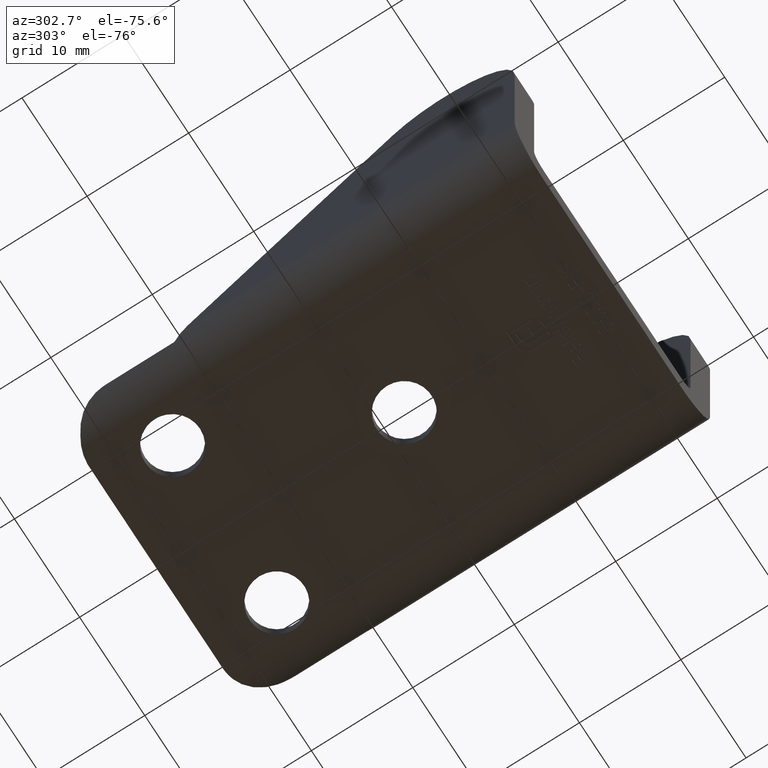
[diagram: clean part render]
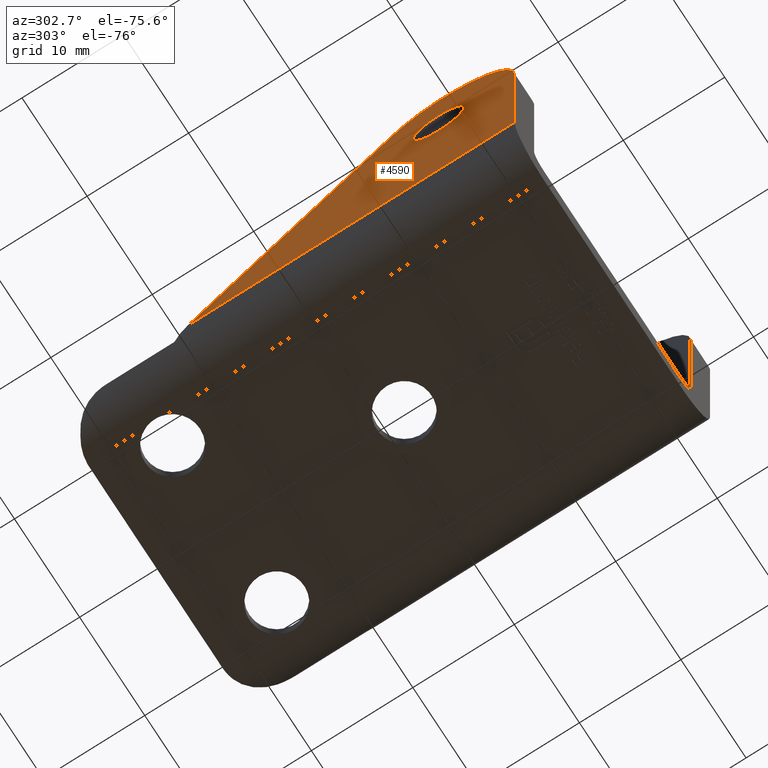
[diagram: same view with one face highlighted and labeled with its STEP entity id]
A machine part, auxiliary view. The second image highlights one B-rep face of the part: STEP entity #4590.
In plain terms, the highlighted planar face has unit normal (-1, -0, 0).
Its self-contained STEP definition (entity closure, byte-faithful):
#334 = LINE ( 'NONE', #12122, #9869 ) ;
#618 = EDGE_LOOP ( 'NONE', ( #6508, #2097, #7301, #5691 ) ) ;
#851 = DIRECTION ( 'NONE',  ( 1.000000000000000000, 0.000000000000000000, -0.000000000000000000 ) ) ;
#1213 = ORIENTED_EDGE ( 'NONE', *, *, #4534, .F. ) ;
#1675 = AXIS2_PLACEMENT_3D ( 'NONE', #10776, #2448, #3564 ) ;
#2097 = ORIENTED_EDGE ( 'NONE', *, *, #13474, .T. ) ;
#2448 = DIRECTION ( 'NONE',  ( -1.000000000000000000, 0.000000000000000000, 0.000000000000000000 ) ) ;
#2540 = CARTESIAN_POINT ( 'NONE',  ( -15.00000000000000000, 11.19999999999999751, -10.75000000000000533 ) ) ;
#2648 = DIRECTION ( 'NONE',  ( -0.000000000000000000, -1.000000000000000000, -0.000000000000000000 ) ) ;
#3564 = DIRECTION ( 'NONE',  ( 0.000000000000000000, 0.000000000000000000, 1.000000000000000000 ) ) ;
#4534 = EDGE_CURVE ( 'NONE', #10197, #10197, #9033, .T. ) ;
#4590 = ADVANCED_FACE ( 'NONE', ( #5422, #11862 ), #7168, .T. ) ;
#4830 = EDGE_CURVE ( 'NONE', #9039, #5916, #7693, .T. ) ;
#5101 = CARTESIAN_POINT ( 'NONE',  ( -15.00000000000000000, 9.746819203602028026, -9.250000000000003553 ) ) ;
#5128 = CARTESIAN_POINT ( 'NONE',  ( -15.00000000000000000, -15.00000000000000711, 8.749999999999998224 ) ) ;
#5422 = FACE_BOUND ( 'NONE', #11494, .T. ) ;
#5691 = ORIENTED_EDGE ( 'NONE', *, *, #14540, .F. ) ;
#5916 = VERTEX_POINT ( 'NONE', #15624 ) ;
#6135 = DIRECTION ( 'NONE',  ( 0.000000000000000000, 1.692413147294445230E-16, -1.000000000000000000 ) ) ;
#6508 = ORIENTED_EDGE ( 'NONE', *, *, #4830, .F. ) ;
#7168 = PLANE ( 'NONE',  #8539 ) ;
#7175 = VERTEX_POINT ( 'NONE', #14198 ) ;
#7280 = CARTESIAN_POINT ( 'NONE',  ( -15.00000000000000000, -15.50000000000000178, 6.750000000000006217 ) ) ;
#7301 = ORIENTED_EDGE ( 'NONE', *, *, #10810, .F. ) ;
#7693 = LINE ( 'NONE', #2540, #10179 ) ;
#8408 = DIRECTION ( 'NONE',  ( -1.000000000000000000, -0.000000000000000000, 0.000000000000000000 ) ) ;
#8539 = AXIS2_PLACEMENT_3D ( 'NONE', #7280, #8408, #15486 ) ;
#9033 = CIRCLE ( 'NONE', #1675, 2.500000000000000444 ) ;
#9039 = VERTEX_POINT ( 'NONE', #5101 ) ;
#9869 = VECTOR ( 'NONE', #2648, 1000.000000000000000 ) ;
#9910 = DIRECTION ( 'NONE',  ( 0.000000000000000000, -0.6958089978180316271, 0.7182268712290472701 ) ) ;
#10088 = LINE ( 'NONE', #12010, #10463 ) ;
#10179 = VECTOR ( 'NONE', #9910, 999.9999999999998863 ) ;
#10197 = VERTEX_POINT ( 'NONE', #5128 ) ;
#10434 = CARTESIAN_POINT ( 'NONE',  ( -15.00000000000000000, -15.50000000000000178, 6.750000000000006217 ) ) ;
#10463 = VECTOR ( 'NONE', #6135, 1000.000000000000000 ) ;
#10776 = CARTESIAN_POINT ( 'NONE',  ( -15.00000000000000000, -15.00000000000000711, 6.249999999999998224 ) ) ;
#10810 = EDGE_CURVE ( 'NONE', #15075, #7175, #10088, .T. ) ;
#11165 = CIRCLE ( 'NONE', #11290, 7.000000000000002665 ) ;
#11290 = AXIS2_PLACEMENT_3D ( 'NONE', #10434, #851, #11538 ) ;
#11494 = EDGE_LOOP ( 'NONE', ( #1213 ) ) ;
#11538 = DIRECTION ( 'NONE',  ( 0.000000000000000000, 0.000000000000000000, 1.000000000000000000 ) ) ;
#11862 = FACE_OUTER_BOUND ( 'NONE', #618, .T. ) ;
#12010 = CARTESIAN_POINT ( 'NONE',  ( -15.00000000000000000, -22.50000000000000711, 6.750000000000006217 ) ) ;
#12122 = CARTESIAN_POINT ( 'NONE',  ( -15.00000000000000000, -22.50000000000000355, -9.250000000000003553 ) ) ;
#13474 = EDGE_CURVE ( 'NONE', #9039, #7175, #334, .T. ) ;
#14198 = CARTESIAN_POINT ( 'NONE',  ( -15.00000000000000000, -22.50000000000000355, -9.250000000000001776 ) ) ;
#14540 = EDGE_CURVE ( 'NONE', #5916, #15075, #11165, .T. ) ;
#15075 = VERTEX_POINT ( 'NONE', #15164 ) ;
#15164 = CARTESIAN_POINT ( 'NONE',  ( -15.00000000000000000, -22.50000000000000711, 6.750000000000006217 ) ) ;
#15486 = DIRECTION ( 'NONE',  ( 0.000000000000000000, 0.000000000000000000, 1.000000000000000000 ) ) ;
#15624 = CARTESIAN_POINT ( 'NONE',  ( -15.00000000000000000, -10.47241190139666678, 11.62066298472622705 ) ) ;